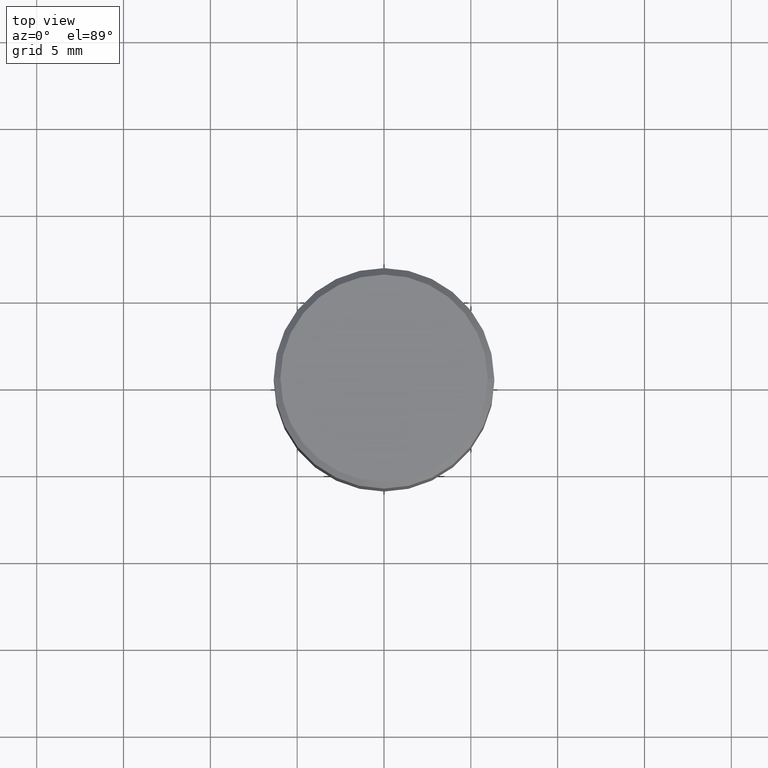
[diagram: clean part render]
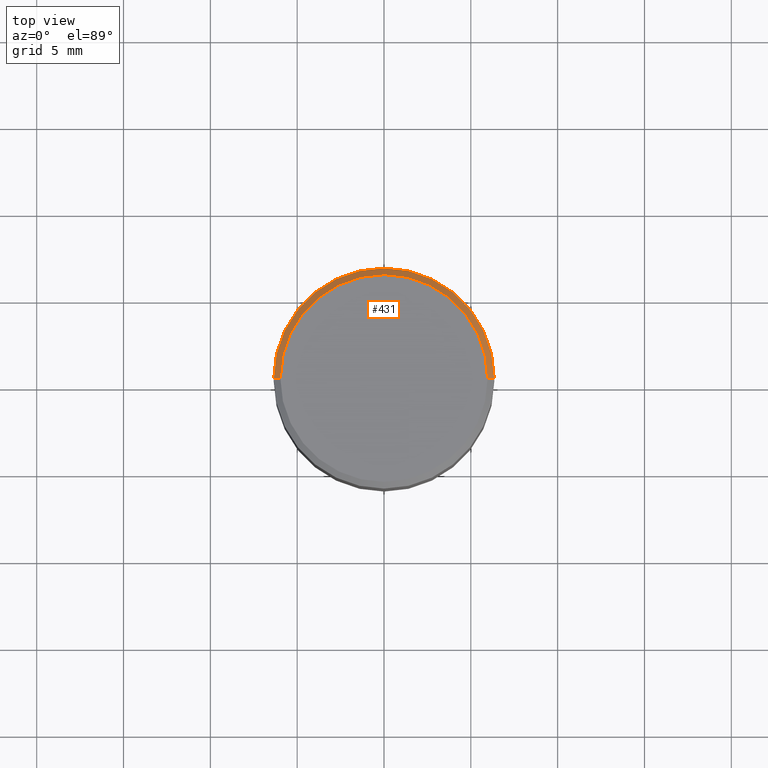
[diagram: same view with one face highlighted and labeled with its STEP entity id]
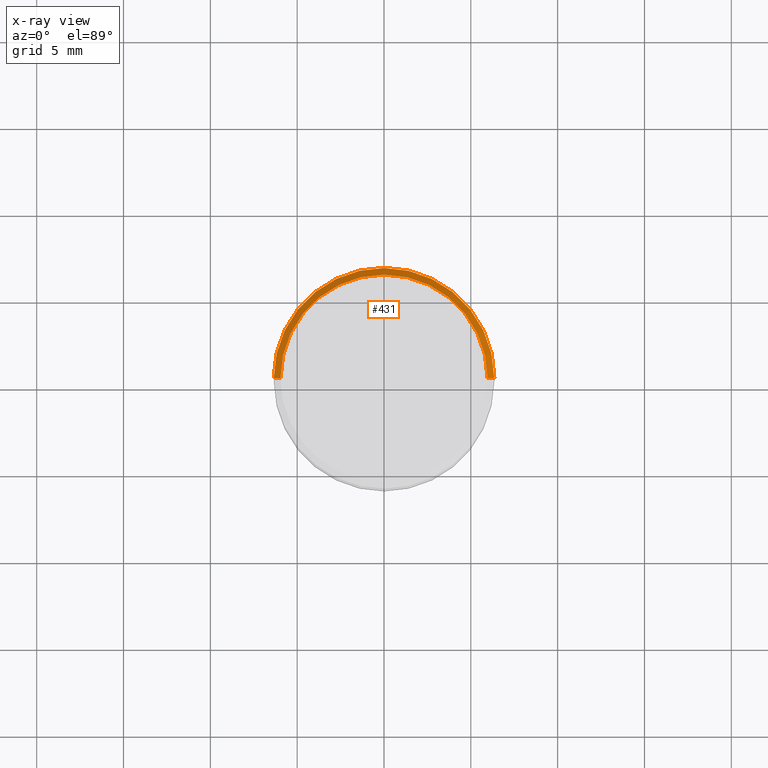
[diagram: x-ray of the same camera — body ghosted, the highlighted face saturated]
A machine part, top view. The second image highlights one B-rep face of the part: STEP entity #431.
The next image is the same camera in x-ray: the body ghosted, the highlighted face saturated — about 0% of this face is hidden behind the body in this view.
In plain terms, the highlighted conical surface has half-angle 45 deg.
Its self-contained STEP definition (entity closure, byte-faithful):
#14 = DIRECTION ( 'NONE',  ( 0.7071067811865441310, -7.319954787623245001E-15, -0.7071067811865509034 ) ) ;
#31 = DIRECTION ( 'NONE',  ( -1.000000000000000000, 6.982962677686266711E-15, 0.000000000000000000 ) ) ;
#57 = CONICAL_SURFACE ( 'NONE', #319, 0.2500000000000000000, 0.7853981633974435050 ) ;
#62 = ORIENTED_EDGE ( 'NONE', *, *, #313, .T. ) ;
#69 = CARTESIAN_POINT ( 'NONE',  ( 3.668203209277705088E-31, -5.237222008264718399E-17, -0.01499999999999999944 ) ) ;
#84 = CARTESIAN_POINT ( 'NONE',  ( -0.2349999999999999867, 1.667182339297596256E-15, 1.568636843340762393E-16 ) ) ;
#86 = ORIENTED_EDGE ( 'NONE', *, *, #359, .F. ) ;
#93 = EDGE_LOOP ( 'NONE', ( #193, #62, #178, #86 ) ) ;
#163 = AXIS2_PLACEMENT_3D ( 'NONE', #270, #410, #244 ) ;
#165 = LINE ( 'NONE', #423, #325 ) ;
#178 = ORIENTED_EDGE ( 'NONE', *, *, #247, .T. ) ;
#193 = ORIENTED_EDGE ( 'NONE', *, *, #201, .F. ) ;
#194 = CARTESIAN_POINT ( 'NONE',  ( 3.668203209277705088E-31, -5.237222008264718399E-17, -0.01499999999999999944 ) ) ;
#201 = EDGE_CURVE ( 'NONE', #383, #269, #461, .T. ) ;
#212 = DIRECTION ( 'NONE',  ( 2.445468806185136597E-29, -3.491481338843145583E-15, -1.000000000000000000 ) ) ;
#222 = CIRCLE ( 'NONE', #301, 0.2500000000000000000 ) ;
#227 = VERTEX_POINT ( 'NONE', #293 ) ;
#244 = DIRECTION ( 'NONE',  ( 1.000000000000000000, -6.982962677686267499E-15, 4.878549297894958458E-29 ) ) ;
#247 = EDGE_CURVE ( 'NONE', #464, #227, #222, .T. ) ;
#264 = DIRECTION ( 'NONE',  ( -0.7071067811865441310, 2.468850131082221167E-15, -0.7071067811865509034 ) ) ;
#269 = VERTEX_POINT ( 'NONE', #84 ) ;
#270 = CARTESIAN_POINT ( 'NONE',  ( -3.836052468622837406E-45, 5.476866265946494270E-31, 1.568636843340877764E-16 ) ) ;
#284 = CARTESIAN_POINT ( 'NONE',  ( 0.2349999999999999867, -1.689856874500919833E-15, 1.568636843340994368E-16 ) ) ;
#293 = CARTESIAN_POINT ( 'NONE',  ( -0.2500000000000000000, 1.047539074263934229E-15, -0.01499999999999999944 ) ) ;
#301 = AXIS2_PLACEMENT_3D ( 'NONE', #194, #433, #403 ) ;
#313 = EDGE_CURVE ( 'NONE', #383, #464, #373, .T. ) ;
#319 = AXIS2_PLACEMENT_3D ( 'NONE', #69, #212, #31 ) ;
#321 = FACE_OUTER_BOUND ( 'NONE', #93, .T. ) ;
#325 = VECTOR ( 'NONE', #264, 39.37007874015748143 ) ;
#358 = CARTESIAN_POINT ( 'NONE',  ( 0.2500000000000000000, -1.798112889504214151E-15, -0.01499999999999999944 ) ) ;
#359 = EDGE_CURVE ( 'NONE', #269, #227, #165, .T. ) ;
#373 = LINE ( 'NONE', #445, #384 ) ;
#383 = VERTEX_POINT ( 'NONE', #284 ) ;
#384 = VECTOR ( 'NONE', #14, 39.37007874015748143 ) ;
#403 = DIRECTION ( 'NONE',  ( 1.000000000000000000, -6.982962677686266711E-15, 0.000000000000000000 ) ) ;
#410 = DIRECTION ( 'NONE',  ( -2.445468806185136597E-29, 3.491481338843145583E-15, 1.000000000000000000 ) ) ;
#423 = CARTESIAN_POINT ( 'NONE',  ( -0.2500000000000000000, 1.693368449338919401E-15, -0.01499999999999999944 ) ) ;
#431 = ADVANCED_FACE ( 'NONE', ( #321 ), #57, .T. ) ;
#433 = DIRECTION ( 'NONE',  ( -2.445468806185136597E-29, 3.491481338843145583E-15, 1.000000000000000000 ) ) ;
#445 = CARTESIAN_POINT ( 'NONE',  ( 0.2500000000000000000, -1.767496719525530167E-15, -0.01499999999999999944 ) ) ;
#461 = CIRCLE ( 'NONE', #163, 0.2349999999999999867 ) ;
#464 = VERTEX_POINT ( 'NONE', #358 ) ;